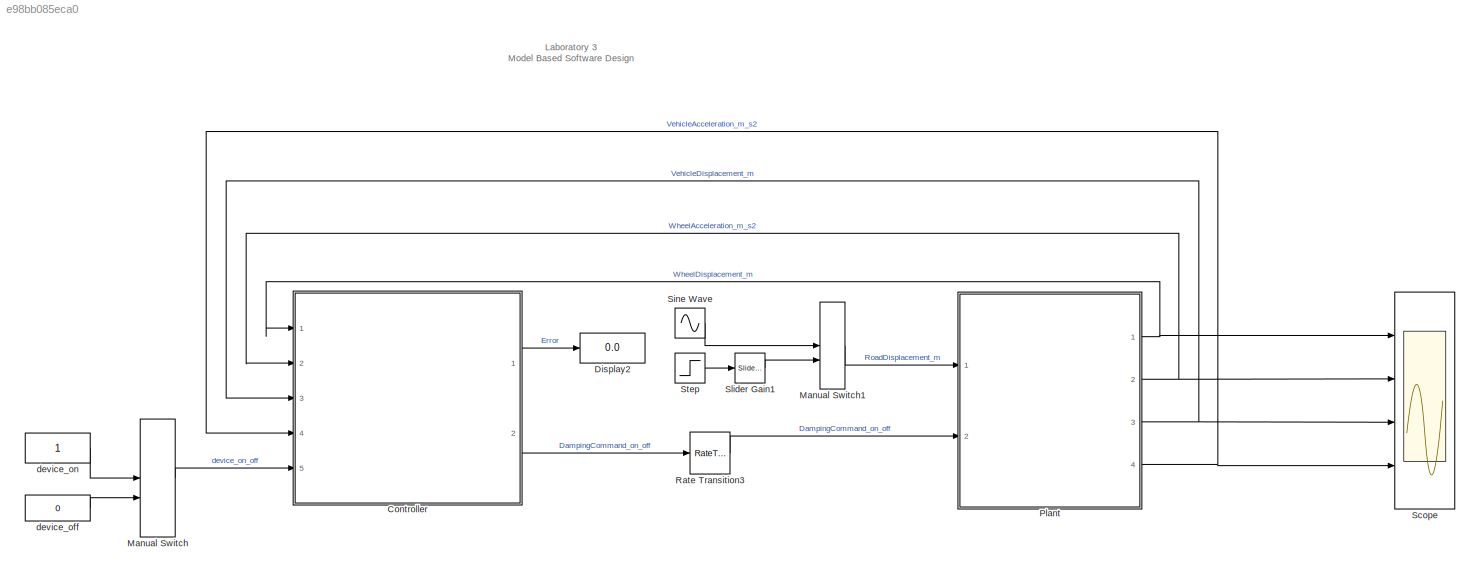
MODEL slx_e98bb085eca0
KIND model
CONFIG AbsTol = auto
CONFIG EnableMultiTasking = off
CONFIG FixedStep = auto
CONFIG MaxStep = auto
CONFIG MinStep = auto
CONFIG RelTol = 1e-3
CONFIG SampleTimeConstraint = Unconstrained
CONFIG SolverName = VariableStepAuto
CONFIG StartTime = 0.0
CONFIG StopTime = inf
BLOCK [ModelReference] Controller
  ModelNameDialog = controller.slx
  ModelReferenceVersion = 1.209
  Ports = [5, 2]
BLOCK [Display] Display2
  Decimation = 1
  Ports = [1]
BLOCK [ManualSwitch] Manual Switch
  CurrentSetting = 0
BLOCK [ManualSwitch] Manual Switch1
  CurrentSetting = 0
BLOCK [ModelReference] Plant
  ModelNameDialog = plant.slx
  ModelReferenceVersion = 1.30
  Ports = [2, 4]
BLOCK [RateTransition] Rate Transition3
BLOCK [Scope] Scope
  Floating = off
  NumInputPorts = 4
  Ports = [4]
  ScopeSpecificationString = Simulink.scopes.TimeScopeBlockCfg('CurrentConfiguration', extmgr.ConfigurationSet(extmgr.Configuration('Core','General UI',true),extmgr.Configuration('Core','Source UI',true),extmgr.Configuration('Sources','WiredSimulink',true),extmgr.Configuration('Visuals','Time Domain',true,'SerializedDisplays',{struct('MinYLimReal','-0.14572','MaxYLimReal','0.01619','YLabelReal','','MinYLimMag','0.00000','MaxY...<+3441ch>
BLOCK [Sin] Sine Wave
  Amplitude = 0.05
  Frequency = 10
  Ports = [0, 1]
  SampleTime = 0
BLOCK [Reference] Slider Gain1  REF=simulink/Math
Operations/Slider
Gain
  Ports = [1, 1]
  SourceBlock = simulink/Math\nOperations/Slider\nGain
  SourceProductBaseCode = SL
  SourceType = Slider Gain
BLOCK [Step] Step
  SampleTime = 0
  Time = 0.01
BLOCK [Constant] device_off
  OutDataTypeStr = int8
  Value = 0
BLOCK [Constant] device_on
  OutDataTypeStr = int8
ANNOTATION (root): Laboratory 3 Model Based Software Design
LINE Controller:1 -> Display2:1
LINE Controller:2 -> Rate Transition3:1
LINE Manual Switch1:1 -> Plant:1
LINE Manual Switch:1 -> Controller:5
NET Plant:1 -> Controller:1, Scope:1
NET Plant:2 -> Controller:2, Scope:2
NET Plant:3 -> Controller:3, Scope:3
NET Plant:4 -> Controller:4, Scope:4
LINE Rate Transition3:1 -> Plant:2
LINE Sine Wave:1 -> Manual Switch1:1
LINE Slider Gain1:1 -> Manual Switch1:2
LINE Step:1 -> Slider Gain1:1
LINE device_off:1 -> Manual Switch:2
LINE device_on:1 -> Manual Switch:1
note: NET lines group one-source signal fan-out (src -> all destinations, sorted); 1:1 wires keep LINE
